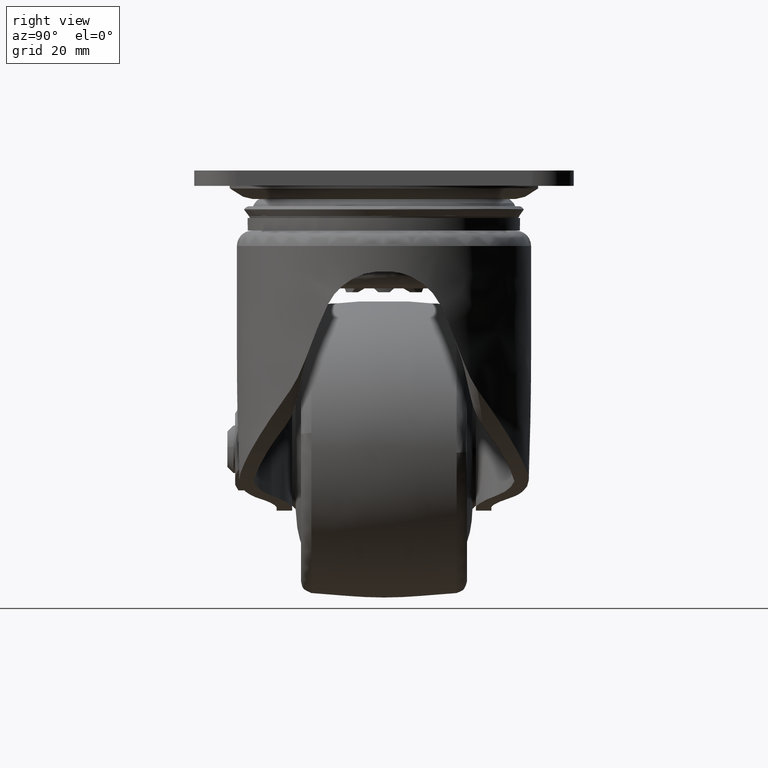
[diagram: clean part render]
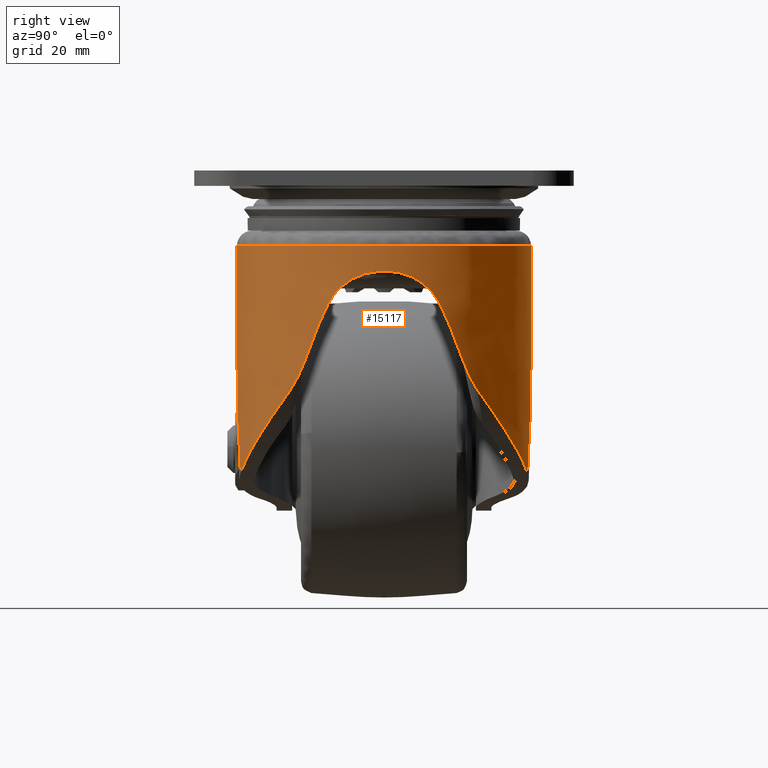
[diagram: same view with one face highlighted and labeled with its STEP entity id]
A machine part, right view. The second image highlights one B-rep face of the part: STEP entity #15117.
In plain terms, the highlighted face is a freeform B-spline surface patch.
Its self-contained STEP definition (entity closure, byte-faithful):
#12181=CARTESIAN_POINT('',(-1.006140E-013,-24.800000000000001,-31.216402141715900));
#12182=VERTEX_POINT('',#12181);
#12183=CARTESIAN_POINT('',(5.379990446006421,-24.209413516251850,-51.029089300138587));
#12184=VERTEX_POINT('',#12183);
#12185=CARTESIAN_POINT('',(-1.006140E-013,-24.800000000000001,-31.216402141715900));
#12186=CARTESIAN_POINT('',(0.892616535044214,-24.800000000000029,-34.521698915327690));
#12187=CARTESIAN_POINT('',(1.785169800889374,-24.752065199376240,-37.826859834609067));
#12188=CARTESIAN_POINT('',(3.576348296639907,-24.557306361107699,-44.432931456941553));
#12189=CARTESIAN_POINT('',(4.474768894221501,-24.410578377054978,-47.733349454053879));
#12190=CARTESIAN_POINT('',(5.379990446006421,-24.209413516251850,-51.029089300138587));
#12191=B_SPLINE_CURVE_WITH_KNOTS('',3,(#12185,#12186,#12187,#12188,#12189,#12190),.UNSPECIFIED.,.F.,.U.,(4,2,4),(0.0,0.500000000000000,1.0),.UNSPECIFIED.);
#12192=EDGE_CURVE('',#12182,#12184,#12191,.T.);
#12257=CARTESIAN_POINT('',(5.379990446006450,24.209413516251850,-51.029089300138587));
#12258=VERTEX_POINT('',#12257);
#12276=CARTESIAN_POINT('',(-1.006140E-013,24.800000000000001,-31.216402141715850));
#12277=VERTEX_POINT('',#12276);
#12291=CARTESIAN_POINT('',(5.379990446006381,24.209413516251900,-51.029089300138487));
#12292=CARTESIAN_POINT('',(4.474768894221469,24.410578377055021,-47.733349454053808));
#12293=CARTESIAN_POINT('',(3.576348296639875,24.557306361107710,-44.432931456941397));
#12294=CARTESIAN_POINT('',(1.785169800889367,24.752065199376251,-37.826859834608989));
#12295=CARTESIAN_POINT('',(0.892616535048850,24.799999999999979,-34.521698915326397));
#12296=CARTESIAN_POINT('',(-1.006140E-013,24.800000000000001,-31.216402141715850));
#12297=B_SPLINE_CURVE_WITH_KNOTS('',3,(#12291,#12292,#12293,#12294,#12295,#12296),.UNSPECIFIED.,.F.,.U.,(4,2,4),(0.0,0.500000000000000,1.0),.UNSPECIFIED.);
#12298=EDGE_CURVE('',#12258,#12277,#12297,.T.);
#12635=CARTESIAN_POINT('',(19.169283780030351,-15.734629304837799,-36.950330761712351));
#12636=VERTEX_POINT('',#12635);
#12637=CARTESIAN_POINT('',(22.164196824089899,-11.126022611113100,-26.278230809190699));
#12638=VERTEX_POINT('',#12637);
#12639=CARTESIAN_POINT('',(19.169283780030351,-15.734629304837799,-36.950330761712351));
#12640=CARTESIAN_POINT('',(19.278857268388322,-15.601137421907961,-36.765027777182880));
#12641=CARTESIAN_POINT('',(19.380552521796659,-15.474441273069781,-36.572545865035543));
#12642=CARTESIAN_POINT('',(19.572951162611300,-15.230355594989790,-36.177663881031783));
#12643=CARTESIAN_POINT('',(19.663585158161052,-15.113034500504289,-35.975195770254622));
#12644=CARTESIAN_POINT('',(19.922694047589001,-14.771859538626479,-35.356272297028411));
#12645=CARTESIAN_POINT('',(20.078526151975069,-14.558684687497101,-34.928423356264886));
#12646=CARTESIAN_POINT('',(20.367965865694721,-14.150917947589260,-34.052803106828513));
#12647=CARTESIAN_POINT('',(20.500520893095189,-13.957752103815860,-33.607729908558767));
#12648=CARTESIAN_POINT('',(20.749356043154169,-13.585080952067610,-32.708547391879037));
#12649=CARTESIAN_POINT('',(20.865595836842310,-13.405599850973029,-32.254330866881517));
#12650=CARTESIAN_POINT('',(21.087343211958299,-13.054009087323919,-31.340466104408240));
#12651=CARTESIAN_POINT('',(21.192830302761461,-12.881914271880429,-30.880807192518901));
#12652=CARTESIAN_POINT('',(21.397254855020989,-12.539428065864991,-29.959273090771081));
#12653=CARTESIAN_POINT('',(21.496188827634580,-12.369032077098581,-29.497398884160798));
#12654=CARTESIAN_POINT('',(21.690658810164098,-12.024741536459970,-28.574223002589768));
#12655=CARTESIAN_POINT('',(21.786198576743359,-11.850830639384419,-28.112928638846391));
#12656=CARTESIAN_POINT('',(21.975961526555491,-11.495118540146519,-27.193130043522942));
#12657=CARTESIAN_POINT('',(22.070187032327720,-11.313299915936099,-26.734633207693712));
#12658=CARTESIAN_POINT('',(22.164196824089899,-11.126022611113100,-26.278230809190699));
#12659=B_SPLINE_CURVE_WITH_KNOTS('',3,(#12639,#12640,#12641,#12642,#12643,#12644,#12645,#12646,#12647,#12648,#12649,#12650,#12651,#12652,#12653,#12654,#12655,#12656,#12657,#12658),.UNSPECIFIED.,.F.,.U.,(4,2,2,2,2,2,2,2,2,4),(0.0,0.062500000000001,0.125000000000001,0.250000000000001,0.375000000000001,0.500000000000001,0.625000000000000,0.750000000000000,0.875000000000000,1.0),.UNSPECIFIED.);
#12660=EDGE_CURVE('',#12636,#12638,#12659,.T.);
#12826=CARTESIAN_POINT('',(19.169283780030600,15.734629304837499,-36.950330761711953));
#12827=VERTEX_POINT('',#12826);
#12841=CARTESIAN_POINT('',(22.164196824089899,11.126022611113100,-26.278230809190699));
#12842=VERTEX_POINT('',#12841);
#12843=CARTESIAN_POINT('',(22.164196824089899,11.126022611113100,-26.278230809190699));
#12844=CARTESIAN_POINT('',(22.070131074504399,11.313411389753201,-26.734904873913500));
#12845=CARTESIAN_POINT('',(21.975852663147489,11.495328584417980,-27.193660075057860));
#12846=CARTESIAN_POINT('',(21.785981408819939,11.851231733058610,-28.113978907293859));
#12847=CARTESIAN_POINT('',(21.690386061442581,12.025235564477990,-28.575536362544970));
#12848=CARTESIAN_POINT('',(21.495784067441740,12.369737475044770,-29.499301687846820));
#12849=CARTESIAN_POINT('',(21.396783681443999,12.540232509387840,-29.961448776603600));
#12850=CARTESIAN_POINT('',(21.192315650516289,12.882761375920071,-30.883075303019840));
#12851=CARTESIAN_POINT('',(21.086849818998239,13.054801690647061,-31.342552398889492));
#12852=CARTESIAN_POINT('',(20.865387261741279,13.405920217898940,-32.255137353511827));
#12853=CARTESIAN_POINT('',(20.749407332234650,13.584987224111190,-32.708255362480237));
#12854=CARTESIAN_POINT('',(20.501626309051279,13.956113398875530,-33.603841609757858));
#12855=CARTESIAN_POINT('',(20.369878561474291,14.148125357101350,-34.046347277975670));
#12856=CARTESIAN_POINT('',(20.154800717631961,14.451275340429479,-34.697999139307342));
#12857=CARTESIAN_POINT('',(20.080178549937550,14.554859733353551,-34.913186936589561));
#12858=CARTESIAN_POINT('',(19.923707877806269,14.768323427349809,-35.338537032496667));
#12859=CARTESIAN_POINT('',(19.841870831213630,14.878191770491780,-35.548707735967213));
#12860=CARTESIAN_POINT('',(19.669065603723102,15.105902380147031,-35.962690149018343));
#12861=CARTESIAN_POINT('',(19.578126149256200,15.223716638000379,-36.166523170078420));
#12862=CARTESIAN_POINT('',(19.384119773161839,15.469986180020831,-36.565720979419368));
#12863=CARTESIAN_POINT('',(19.281146656740169,15.598348291376521,-36.761156124461948));
#12864=CARTESIAN_POINT('',(19.169283780030600,15.734629304837499,-36.950330761711953));
#12865=B_SPLINE_CURVE_WITH_KNOTS('',3,(#12843,#12844,#12845,#12846,#12847,#12848,#12849,#12850,#12851,#12852,#12853,#12854,#12855,#12856,#12857,#12858,#12859,#12860,#12861,#12862,#12863,#12864),.UNSPECIFIED.,.F.,.U.,(4,2,2,2,2,2,2,2,2,2,4),(0.0,0.125000000000000,0.250000000000000,0.375000000000000,0.500000000000000,0.625000000000000,0.750000000000000,0.812500000000000,0.875000000000000,0.937500000000000,1.0),.UNSPECIFIED.);
#12866=EDGE_CURVE('',#12842,#12827,#12865,.T.);
#12902=CARTESIAN_POINT('',(22.924374438520800,-9.461134001930729,-22.588442853493699));
#12903=VERTEX_POINT('',#12902);
#12904=CARTESIAN_POINT('',(22.924374438520800,-9.461134001930740,-22.588442853493699));
#12905=CARTESIAN_POINT('',(22.676489806083179,-10.061759691239800,-23.805788779462180));
#12906=CARTESIAN_POINT('',(22.420191255021649,-10.616055019695880,-25.035419075534570));
#12907=CARTESIAN_POINT('',(22.164196824089860,-11.126022611113131,-26.278230809190681));
#12908=QUASI_UNIFORM_CURVE('',3,(#12904,#12905,#12906,#12907),.UNSPECIFIED.,.F.,.U.);
#12909=EDGE_CURVE('',#12903,#12638,#12908,.T.);
#12969=CARTESIAN_POINT('',(22.924375318421550,9.461131869926529,-22.588438532355902));
#12970=VERTEX_POINT('',#12969);
#12971=CARTESIAN_POINT('',(22.164196824089860,11.126022611113120,-26.278230809190681));
#12972=CARTESIAN_POINT('',(22.420813184532349,10.614816071280281,-25.032399707923350));
#12973=CARTESIAN_POINT('',(22.677085336322399,10.060316876547811,-23.802864236793500));
#12974=CARTESIAN_POINT('',(22.924375318421550,9.461131869926540,-22.588438532355902));
#12975=QUASI_UNIFORM_CURVE('',3,(#12971,#12972,#12973,#12974),.UNSPECIFIED.,.F.,.U.);
#12976=EDGE_CURVE('',#12842,#12970,#12975,.T.);
#13000=CARTESIAN_POINT('',(24.778283994983401,-1.037613735425786,-17.027916490245399));
#13001=VERTEX_POINT('',#13000);
#13002=CARTESIAN_POINT('',(24.778283994983401,-1.037613735425786,-17.027916490245399));
#13003=CARTESIAN_POINT('',(24.759385816245700,-1.488903482046690,-17.052518415107521));
#13004=CARTESIAN_POINT('',(24.728487831674101,-1.932265407435240,-17.107221260852121));
#13005=CARTESIAN_POINT('',(24.644856314815780,-2.804071551888324,-17.273626553025569));
#13006=CARTESIAN_POINT('',(24.592114586922829,-3.232512224401599,-17.385341101695278));
#13007=CARTESIAN_POINT('',(24.513717728509320,-3.758852261401251,-17.560666450224151));
#13008=CARTESIAN_POINT('',(24.497414559198891,-3.863657991568514,-17.597523340606749));
#13009=CARTESIAN_POINT('',(24.463589548576220,-4.072340796133616,-17.674853277213771));
#13010=CARTESIAN_POINT('',(24.446035372883699,-4.176399880430604,-17.715402070107331));
#13011=CARTESIAN_POINT('',(24.391835467132079,-4.485778438414109,-17.841963006250900));
#13012=CARTESIAN_POINT('',(24.353754196251518,-4.687795367711106,-17.932641300569831));
#13013=CARTESIAN_POINT('',(24.234419914885269,-5.281663263870344,-18.223007433253890));
#13014=CARTESIAN_POINT('',(24.148078441229980,-5.661385009875207,-18.440937905126010));
#13015=CARTESIAN_POINT('',(24.011240325418459,-6.207703375118215,-18.803760357723110));
#13016=CARTESIAN_POINT('',(23.964405355929809,-6.385918296948248,-18.930711497582191));
#13017=CARTESIAN_POINT('',(23.892679153037999,-6.647409422446734,-19.130282878765591));
#13018=CARTESIAN_POINT('',(23.868524894264262,-6.733600416316702,-19.198332219375381));
#13019=CARTESIAN_POINT('',(23.819787126292521,-6.904027553018758,-19.337521470856760));
#13020=CARTESIAN_POINT('',(23.795171955248879,-6.988365764837025,-19.408757047943599));
#13021=CARTESIAN_POINT('',(23.672000890027189,-7.402418858101116,-19.770360324216600));
#13022=CARTESIAN_POINT('',(23.572634819849320,-7.711232946356932,-20.078372681465449));
#13023=CARTESIAN_POINT('',(23.376739664092192,-8.286149200938407,-20.731343966752561));
#13024=CARTESIAN_POINT('',(23.280194124849729,-8.552247920165199,-21.076301047818959));
#13025=CARTESIAN_POINT('',(23.164248495779930,-8.857870261068369,-21.531705598924500));
#13026=CARTESIAN_POINT('',(23.141297557660749,-8.917638210958922,-21.624002784902942));
#13027=CARTESIAN_POINT('',(23.095953283359659,-9.034426702708853,-21.811082290443000));
#13028=CARTESIAN_POINT('',(23.073535570409931,-9.091508325563490,-21.905972052009268));
#13029=CARTESIAN_POINT('',(23.007447594332540,-9.258057280288599,-22.193579582348459));
#13030=CARTESIAN_POINT('',(22.964969172259011,-9.362772761485688,-22.389084655101080));
#13031=CARTESIAN_POINT('',(22.924374438520800,-9.461134001930731,-22.588442853493699));
#13032=B_SPLINE_CURVE_WITH_KNOTS('',3,(#13002,#13003,#13004,#13005,#13006,#13007,#13008,#13009,#13010,#13011,#13012,#13013,#13014,#13015,#13016,#13017,#13018,#13019,#13020,#13021,#13022,#13023,#13024,#13025,#13026,#13027,#13028,#13029,#13030,#13031),.UNSPECIFIED.,.F.,.U.,(4,2,2,2,2,2,2,2,2,2,2,2,2,2,4),(0.0,0.125000000000001,0.250000000000001,0.281250000000001,0.312500000000001,0.375000000000001,0.500000000000002,0.562500000000002,0.593750000000002,0.625000000000002,0.750000000000001,0.874999999999999,0.906249999999999,0.937499999999999,1.0),.UNSPECIFIED.);
#13033=EDGE_CURVE('',#13001,#12903,#13032,.T.);
#13093=CARTESIAN_POINT('',(24.778287107987399,1.037539394018282,-17.027908949109399));
#13094=VERTEX_POINT('',#13093);
#13095=CARTESIAN_POINT('',(24.778287107987399,1.037539394018284,-17.027908949109399));
#13096=CARTESIAN_POINT('',(24.807251360342569,0.345821503726730,-16.990205198641050));
#13097=CARTESIAN_POINT('',(24.807250311198882,-0.345896206087926,-16.990207717090239));
#13098=CARTESIAN_POINT('',(24.778283994983401,-1.037613735425786,-17.027916490245399));
#13099=QUASI_UNIFORM_CURVE('',3,(#13095,#13096,#13097,#13098),.UNSPECIFIED.,.F.,.U.);
#13100=EDGE_CURVE('',#13094,#13001,#13099,.T.);
#13134=CARTESIAN_POINT('',(22.924375318421550,9.461131869926529,-22.588438532355902));
#13135=CARTESIAN_POINT('',(23.005754342462652,9.263950040541515,-22.188791212401259));
#13136=CARTESIAN_POINT('',(23.093930655337669,9.043125956393277,-21.808178918492210));
#13137=CARTESIAN_POINT('',(23.278660136521189,8.556386061011889,-21.082044787400630));
#13138=CARTESIAN_POINT('',(23.375230237441230,8.290459509537321,-20.736535261793811));
#13139=CARTESIAN_POINT('',(23.522906659429459,7.857234830074256,-20.244048909846509));
#13140=CARTESIAN_POINT('',(23.572605239427979,7.707083055056083,-20.084199244313780));
#13141=CARTESIAN_POINT('',(23.647438136886748,7.472976736881377,-19.850973013779090));
#13142=CARTESIAN_POINT('',(23.672452584247289,7.393381480188624,-19.774258981534409));
#13143=CARTESIAN_POINT('',(23.722149261216519,7.232339558787124,-19.624101273899221));
#13144=CARTESIAN_POINT('',(23.746873280788030,7.150764934787516,-19.550524905206021));
#13145=CARTESIAN_POINT('',(23.869705211119150,6.737659044253011,-19.190041708935940));
#13146=CARTESIAN_POINT('',(23.965438829708290,6.390503531648943,-18.925218362750570));
#13147=CARTESIAN_POINT('',(24.147801921089521,5.662548548871979,-18.441649703666481));
#13148=CARTESIAN_POINT('',(24.234447740961411,5.281755875939691,-18.222900441409891));
#13149=CARTESIAN_POINT('',(24.334543992656819,4.783336317059011,-17.979390460966670));
#13150=CARTESIAN_POINT('',(24.354178571270690,4.682383186131594,-17.932128806563082));
#13151=CARTESIAN_POINT('',(24.392436643188290,4.478812430896605,-17.840959587241802));
#13152=CARTESIAN_POINT('',(24.411001317392710,4.376517564280534,-17.797190445567441));
#13153=CARTESIAN_POINT('',(24.464954292740401,4.068117093565135,-17.671255409751389));
#13154=CARTESIAN_POINT('',(24.498601547683968,3.860497171717510,-17.594455561629260));
#13155=CARTESIAN_POINT('',(24.592199787852920,3.231621019617025,-17.385174730542669));
#13156=CARTESIAN_POINT('',(24.644813592171801,2.804372607989332,-17.273716579910669));
#13157=CARTESIAN_POINT('',(24.728381463852081,1.933518268740436,-17.107421405681979));
#13158=CARTESIAN_POINT('',(24.759344705543558,1.489917673797026,-17.052566917361300));
#13159=CARTESIAN_POINT('',(24.778287107987399,1.037539394018290,-17.027908949109399));
#13160=B_SPLINE_CURVE_WITH_KNOTS('',3,(#13134,#13135,#13136,#13137,#13138,#13139,#13140,#13141,#13142,#13143,#13144,#13145,#13146,#13147,#13148,#13149,#13150,#13151,#13152,#13153,#13154,#13155,#13156,#13157,#13158,#13159),.UNSPECIFIED.,.F.,.U.,(4,2,2,2,2,2,2,2,2,2,2,2,4),(0.0,0.125000000000002,0.250000000000004,0.312500000000005,0.343750000000005,0.375000000000005,0.500000000000004,0.625000000000002,0.656250000000002,0.687500000000002,0.750000000000002,0.875000000000001,1.0),.UNSPECIFIED.);
#13161=EDGE_CURVE('',#12970,#13094,#13160,.T.);
#13564=CARTESIAN_POINT('',(-1.006140E-013,-24.800000000000001,-12.724304000000000));
#13565=VERTEX_POINT('',#13564);
#13612=CARTESIAN_POINT('',(-1.006140E-013,24.800000000000001,-12.724304000000000));
#13613=VERTEX_POINT('',#13612);
#13629=CARTESIAN_POINT('',(-1.006140E-013,24.800000000000001,-12.724304000000000));
#13630=CARTESIAN_POINT('',(24.799999999999894,24.800000000000004,-12.724304000000000));
#13631=CARTESIAN_POINT('',(24.799999999999901,0.0,-12.724304000000000));
#13632=CARTESIAN_POINT('',(24.799999999999894,-24.800000000000004,-12.724304000000000));
#13633=CARTESIAN_POINT('',(-1.006140E-013,-24.800000000000001,-12.724304000000000));
#13641=(BOUNDED_CURVE()B_SPLINE_CURVE(2,(#13629,#13630,#13631,#13632,#13633),.UNSPECIFIED.,.F.,.U.)B_SPLINE_CURVE_WITH_KNOTS((3,2,3),(0.0,0.500000000000000,1.0),.UNSPECIFIED.)CURVE()GEOMETRIC_REPRESENTATION_ITEM()RATIONAL_B_SPLINE_CURVE((1.0,0.707106781186547,1.0,0.707106781186547,1.0))REPRESENTATION_ITEM(''));
#13642=EDGE_CURVE('',#13613,#13565,#13641,.T.);
#15011=CARTESIAN_POINT('',(-0.875697129305269,-24.784534583843332,-11.766684367496540));
#15012=CARTESIAN_POINT('',(-0.875697129305269,-24.784534583843332,-52.010649423454652));
#15013=CARTESIAN_POINT('',(25.014565462395112,-25.699299739178890,-11.766684367496540));
#15014=CARTESIAN_POINT('',(25.014565462395112,-25.699299739178890,-52.010649423454652));
#15015=CARTESIAN_POINT('',(24.799142571020500,0.206222555005565,-11.766684367496540));
#15016=CARTESIAN_POINT('',(24.799142571020500,0.206222555005565,-52.010649423454652));
#15017=CARTESIAN_POINT('',(24.583719679645892,26.111744849190018,-11.766684367496540));
#15018=CARTESIAN_POINT('',(24.583719679645892,26.111744849190018,-52.010649423454652));
#15019=CARTESIAN_POINT('',(-1.287749682962022,24.766543980822810,-11.766684367496540));
#15020=CARTESIAN_POINT('',(-1.287749682962022,24.766543980822810,-52.010649423454652));
#15028=(BOUNDED_SURFACE()B_SPLINE_SURFACE(1,2,((#15011,#15013,#15015,#15017,#15019),(#15012,#15014,#15016,#15018,#15020)),.UNSPECIFIED.,.F.,.F.,.U.)B_SPLINE_SURFACE_WITH_KNOTS((2,2),(3,2,3),(0.0,40.243965055958107),(0.0,42.363554210456883,84.727108420913751),.UNSPECIFIED.)GEOMETRIC_REPRESENTATION_ITEM()RATIONAL_B_SPLINE_SURFACE(((1.0,0.691513055782269,1.0,0.691513055782269,1.0),(1.0,0.691513055782269,1.0,0.691513055782269,1.0)))REPRESENTATION_ITEM('')SURFACE());
#15029=CARTESIAN_POINT('',(10.293669418560240,22.562809441676201,-47.399080797165801));
#15030=VERTEX_POINT('',#15029);
#15031=CARTESIAN_POINT('',(5.379990446006447,24.209413516251860,-51.029089300138587));
#15032=CARTESIAN_POINT('',(6.252226041678878,24.015579032478261,-50.482451073732229));
#15033=CARTESIAN_POINT('',(7.099285639710764,23.778013163633808,-49.904782546610399));
#15034=CARTESIAN_POINT('',(8.127674140423538,23.431347026576340,-49.144275292520462));
#15035=CARTESIAN_POINT('',(8.331543120315086,23.359613061114590,-48.990455571328773));
#15036=CARTESIAN_POINT('',(8.734885863005848,23.211805231194859,-48.680062335961694));
#15037=CARTESIAN_POINT('',(8.934493030235343,23.135686694864269,-48.523390503648997));
#15038=CARTESIAN_POINT('',(9.527253636265499,22.900919115861850,-48.048998599140759));
#15039=CARTESIAN_POINT('',(9.914350105957993,22.735863582743939,-47.726904297590501));
#15040=CARTESIAN_POINT('',(10.293669418560240,22.562809441676251,-47.399080797165801));
#15041=B_SPLINE_CURVE_WITH_KNOTS('',3,(#15031,#15032,#15033,#15034,#15035,#15036,#15037,#15038,#15039,#15040),.UNSPECIFIED.,.F.,.U.,(4,2,2,2,4),(0.0,0.499999999999997,0.624999999999997,0.749999999999997,1.0),.UNSPECIFIED.);
#15042=EDGE_CURVE('',#12258,#15030,#15041,.T.);
#15043=ORIENTED_EDGE('',*,*,#15042,.F.);
#15044=ORIENTED_EDGE('',*,*,#12298,.T.);
#15045=CARTESIAN_POINT('',(-1.006140E-013,24.800000000000001,-12.724304000000000));
#15046=CARTESIAN_POINT('',(-1.006140E-013,24.800000000000001,-31.216402141715850));
#15047=QUASI_UNIFORM_CURVE('',1,(#15045,#15046),.UNSPECIFIED.,.F.,.U.);
#15048=EDGE_CURVE('',#13613,#12277,#15047,.T.);
#15049=ORIENTED_EDGE('',*,*,#15048,.F.);
#15050=ORIENTED_EDGE('',*,*,#13642,.T.);
#15051=CARTESIAN_POINT('',(-1.006140E-013,-24.800000000000001,-31.216402141715900));
#15052=CARTESIAN_POINT('',(-1.006140E-013,-24.800000000000001,-12.724304000000000));
#15053=QUASI_UNIFORM_CURVE('',1,(#15051,#15052),.UNSPECIFIED.,.F.,.U.);
#15054=EDGE_CURVE('',#12182,#13565,#15053,.T.);
#15055=ORIENTED_EDGE('',*,*,#15054,.F.);
#15056=ORIENTED_EDGE('',*,*,#12192,.T.);
#15057=CARTESIAN_POINT('',(10.293669418560240,-22.562809441676251,-47.399080797165801));
#15058=VERTEX_POINT('',#15057);
#15059=CARTESIAN_POINT('',(10.293669418560240,-22.562809441676251,-47.399080797165801));
#15060=CARTESIAN_POINT('',(9.531556854415181,-22.910502614165232,-48.057730120295950));
#15061=CARTESIAN_POINT('',(8.741996916911823,-23.224197337766320,-48.689910658555149));
#15062=CARTESIAN_POINT('',(7.105275046027123,-23.776057675718910,-49.900417772902252));
#15063=CARTESIAN_POINT('',(6.258129825787411,-24.014267051001379,-50.478751116874008));
#15064=CARTESIAN_POINT('',(5.379990446006429,-24.209413516251860,-51.029089300138601));
#15065=B_SPLINE_CURVE_WITH_KNOTS('',3,(#15059,#15060,#15061,#15062,#15063,#15064),.UNSPECIFIED.,.F.,.U.,(4,2,4),(0.0,0.500000000000000,1.0),.UNSPECIFIED.);
#15066=EDGE_CURVE('',#15058,#12184,#15065,.T.);
#15067=ORIENTED_EDGE('',*,*,#15066,.F.);
#15068=CARTESIAN_POINT('',(19.169283780030351,-15.734629304837799,-36.950330761712351));
#15069=CARTESIAN_POINT('',(18.456380068376799,-16.603216754512129,-38.156010454629737));
#15070=CARTESIAN_POINT('',(17.674704337642108,-17.435695615264660,-39.335644941022480));
#15071=CARTESIAN_POINT('',(16.365287045215570,-18.643946718180370,-41.097971408390208));
#15072=CARTESIAN_POINT('',(15.891536059704620,-19.049924586368970,-41.699839357850877));
#15073=CARTESIAN_POINT('',(14.899061986284000,-19.835788838880759,-42.888239624728072));
#15074=CARTESIAN_POINT('',(14.380349093044590,-20.215684074796378,-43.474773409108828));
#15075=CARTESIAN_POINT('',(13.565600048445781,-20.763466470889451,-44.342599846840542));
#15076=CARTESIAN_POINT('',(13.287894884018851,-20.942376870396480,-44.629877859562697));
#15077=CARTESIAN_POINT('',(12.861689135473499,-21.204828435085322,-45.057721461012747));
#15078=CARTESIAN_POINT('',(12.717969728258939,-21.291348045871079,-45.199861707796593));
#15079=CARTESIAN_POINT('',(12.427994055063669,-21.461901695954019,-45.482366705884210));
#15080=CARTESIAN_POINT('',(12.281650943858921,-21.545990541815009,-45.622820059071451));
#15081=CARTESIAN_POINT('',(11.543052670984800,-21.960349222296770,-46.321058785146583));
#15082=CARTESIAN_POINT('',(10.930191380108100,-22.272413377339198,-46.866776624305828));
#15083=CARTESIAN_POINT('',(10.293669418560240,-22.562809441676251,-47.399080797165801));
#15084=B_SPLINE_CURVE_WITH_KNOTS('',3,(#15068,#15069,#15070,#15071,#15072,#15073,#15074,#15075,#15076,#15077,#15078,#15079,#15080,#15081,#15082,#15083),.UNSPECIFIED.,.F.,.U.,(4,2,2,2,2,2,2,4),(0.815866697974493,0.875000000000002,0.906250000000002,0.937500000000001,0.953125000000001,0.960937500000001,0.968750000000001,1.0),.UNSPECIFIED.);
#15085=EDGE_CURVE('',#12636,#15058,#15084,.T.);
#15086=ORIENTED_EDGE('',*,*,#15085,.F.);
#15087=ORIENTED_EDGE('',*,*,#12660,.T.);
#15088=ORIENTED_EDGE('',*,*,#12909,.F.);
#15089=ORIENTED_EDGE('',*,*,#13033,.F.);
#15090=ORIENTED_EDGE('',*,*,#13100,.F.);
#15091=ORIENTED_EDGE('',*,*,#13161,.F.);
#15092=ORIENTED_EDGE('',*,*,#12976,.F.);
#15093=ORIENTED_EDGE('',*,*,#12866,.T.);
#15094=CARTESIAN_POINT('',(10.293669418560240,22.562809441676251,-47.399080797165801));
#15095=CARTESIAN_POINT('',(10.927694447879400,22.273552730459730,-46.868864913716607));
#15096=CARTESIAN_POINT('',(11.535352140809170,21.964138946504150,-46.327776906916959));
#15097=CARTESIAN_POINT('',(12.702955816961110,21.310153969085832,-45.225085505776832));
#15098=CARTESIAN_POINT('',(13.262886482128270,20.965566290966329,-44.663478849150813));
#15099=CARTESIAN_POINT('',(14.338683731294550,20.245030911130581,-43.520608881878097));
#15100=CARTESIAN_POINT('',(14.854540810613450,19.869072993113441,-42.939343539189451));
#15101=CARTESIAN_POINT('',(15.844871623885160,19.088674325956980,-41.757732043935292));
#15102=CARTESIAN_POINT('',(16.319339302055120,18.684227002885780,-41.157384638096012));
#15103=CARTESIAN_POINT('',(17.001457779366731,18.057843915156369,-40.242808452209417));
#15104=CARTESIAN_POINT('',(17.223894833422762,17.845759484505930,-39.935605482753097));
#15105=CARTESIAN_POINT('',(17.550286265822130,17.522867150971670,-39.471302046002450));
#15106=CARTESIAN_POINT('',(17.657872437725569,17.414441850684991,-39.315950971186062));
#15107=CARTESIAN_POINT('',(17.870642844527261,17.196027690173800,-39.004084028488037));
#15108=CARTESIAN_POINT('',(17.975862267582201,17.085998333584278,-38.847511478989773));
#15109=CARTESIAN_POINT('',(18.461593818452862,16.568675531358402,-38.113748693929963));
#15110=CARTESIAN_POINT('',(18.824401071846030,16.154803538722071,-37.533580627707941));
#15111=CARTESIAN_POINT('',(19.169283780030600,15.734629304837499,-36.950330761711953));
#15112=B_SPLINE_CURVE_WITH_KNOTS('',3,(#15094,#15095,#15096,#15097,#15098,#15099,#15100,#15101,#15102,#15103,#15104,#15105,#15106,#15107,#15108,#15109,#15110,#15111),.UNSPECIFIED.,.F.,.U.,(4,2,2,2,2,2,2,2,4),(0.0,0.031250000000001,0.062500000000001,0.093750000000002,0.125000000000003,0.140625000000003,0.148437500000003,0.156250000000003,0.185022028843007),.UNSPECIFIED.);
#15113=EDGE_CURVE('',#15030,#12827,#15112,.T.);
#15114=ORIENTED_EDGE('',*,*,#15113,.F.);
#15115=EDGE_LOOP('',(#15043,#15044,#15049,#15050,#15055,#15056,#15067,#15086,#15087,#15088,#15089,#15090,#15091,#15092,#15093,#15114));
#15116=FACE_OUTER_BOUND('',#15115,.T.);
#15117=ADVANCED_FACE('',(#15116),#15028,.T.);